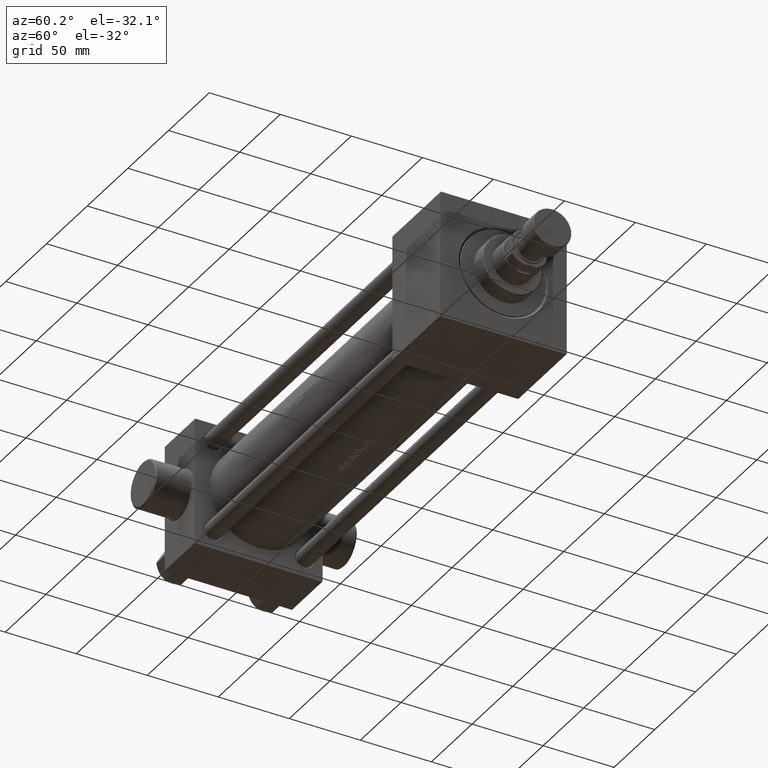
[diagram: clean part render]
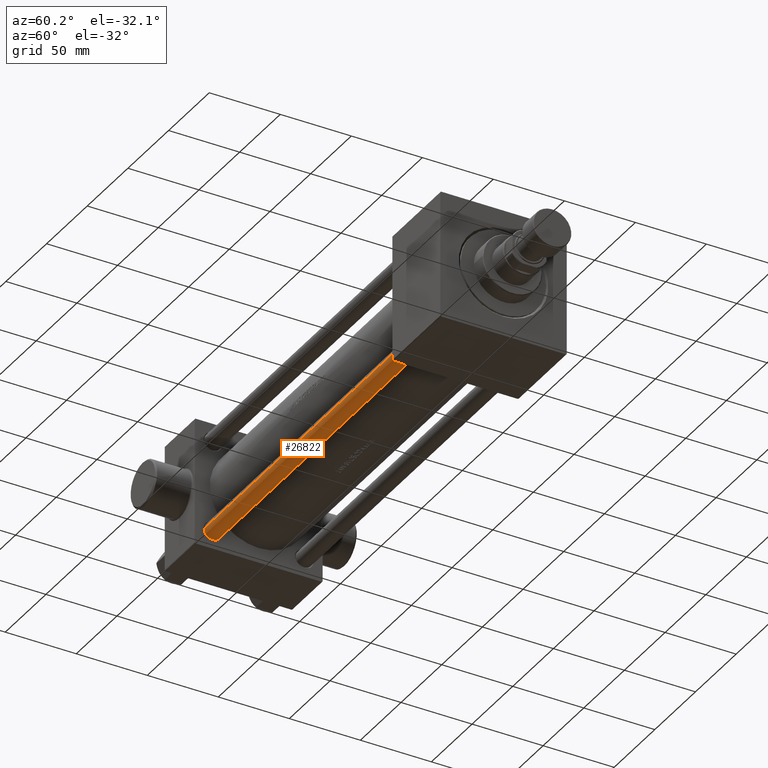
[diagram: same view with one face highlighted and labeled with its STEP entity id]
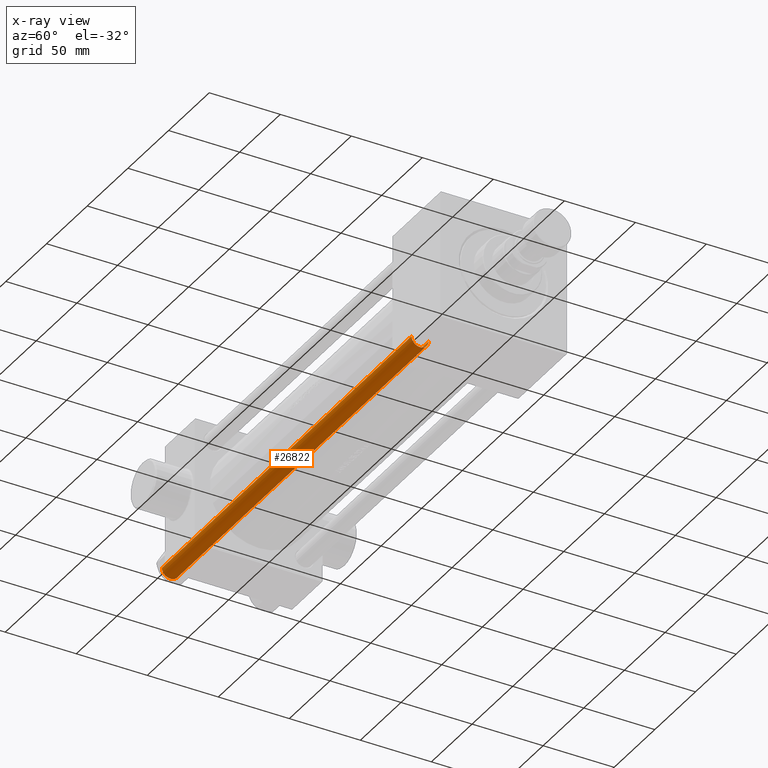
[diagram: x-ray of the same camera — body ghosted, the highlighted face saturated]
A machine part, auxiliary view. The second image highlights one B-rep face of the part: STEP entity #26822.
The next image is the same camera in x-ray: the body ghosted, the highlighted face saturated — about 0% of this face is hidden behind the body in this view.
In plain terms, the highlighted cylindrical surface (edge-blend (fillet) strip) has radius 6 mm, axis along (-1, 0, 0).
Its self-contained STEP definition (entity closure, byte-faithful):
#181 = DIRECTION ( 'NONE',  ( -0.000000000000000000, -0.000000000000000000, -1.000000000000000000 ) ) ;
#1114 = VERTEX_POINT ( 'NONE', #6437 ) ;
#2324 = EDGE_LOOP ( 'NONE', ( #17593, #36899, #31732, #22449 ) ) ;
#2370 = AXIS2_PLACEMENT_3D ( 'NONE', #10578, #181, #3264 ) ;
#3057 = CIRCLE ( 'NONE', #9086, 6.000000000000000888 ) ;
#3264 = DIRECTION ( 'NONE',  ( -1.000000000000000000, 0.000000000000000000, 0.000000000000000000 ) ) ;
#4901 = DIRECTION ( 'NONE',  ( -0.000000000000000000, -0.000000000000000000, -1.000000000000000000 ) ) ;
#6374 = DIRECTION ( 'NONE',  ( -0.000000000000000000, -0.000000000000000000, 1.000000000000000000 ) ) ;
#6437 = CARTESIAN_POINT ( 'NONE',  ( -6.000000000000000888, 0.000000000000000000, 0.5000000000000559552 ) ) ;
#8394 = VECTOR ( 'NONE', #4901, 1000.000000000000000 ) ;
#9086 = AXIS2_PLACEMENT_3D ( 'NONE', #42524, #6374, #31209 ) ;
#9930 = EDGE_CURVE ( 'NONE', #1114, #10419, #3057, .T. ) ;
#10419 = VERTEX_POINT ( 'NONE', #41894 ) ;
#10578 = CARTESIAN_POINT ( 'NONE',  ( 0.000000000000000000, 0.000000000000000000, 308.0000000000000000 ) ) ;
#10953 = LINE ( 'NONE', #21144, #32090 ) ;
#14088 = CARTESIAN_POINT ( 'NONE',  ( 0.000000000000000000, 0.000000000000000000, 307.4999999999999432 ) ) ;
#17593 = ORIENTED_EDGE ( 'NONE', *, *, #20153, .F. ) ;
#19023 = EDGE_CURVE ( 'NONE', #25687, #39234, #23751, .T. ) ;
#20153 = EDGE_CURVE ( 'NONE', #25687, #10419, #10953, .T. ) ;
#21144 = CARTESIAN_POINT ( 'NONE',  ( 6.000000000000000888, 7.347880794884120722E-16, 308.0000000000000000 ) ) ;
#22449 = ORIENTED_EDGE ( 'NONE', *, *, #9930, .T. ) ;
#23751 = CIRCLE ( 'NONE', #44159, 6.000000000000000888 ) ;
#25014 = CARTESIAN_POINT ( 'NONE',  ( -6.000000000000000888, 0.000000000000000000, 308.0000000000000000 ) ) ;
#25687 = VERTEX_POINT ( 'NONE', #38205 ) ;
#26822 = ADVANCED_FACE ( 'NONE', ( #39421 ), #28560, .T. ) ;
#26888 = EDGE_CURVE ( 'NONE', #39234, #1114, #42973, .T. ) ;
#28560 = CYLINDRICAL_SURFACE ( 'NONE', #2370, 6.000000000000000888 ) ;
#28754 = DIRECTION ( 'NONE',  ( 0.000000000000000000, 0.000000000000000000, -1.000000000000000000 ) ) ;
#31209 = DIRECTION ( 'NONE',  ( 1.000000000000000000, 0.000000000000000000, 0.000000000000000000 ) ) ;
#31732 = ORIENTED_EDGE ( 'NONE', *, *, #26888, .T. ) ;
#32090 = VECTOR ( 'NONE', #35326, 1000.000000000000000 ) ;
#32529 = DIRECTION ( 'NONE',  ( 1.000000000000000000, 0.000000000000000000, 0.000000000000000000 ) ) ;
#35326 = DIRECTION ( 'NONE',  ( -0.000000000000000000, -0.000000000000000000, -1.000000000000000000 ) ) ;
#36899 = ORIENTED_EDGE ( 'NONE', *, *, #19023, .T. ) ;
#38205 = CARTESIAN_POINT ( 'NONE',  ( 6.000000000000000888, 7.347880794884120722E-16, 307.4999999999999432 ) ) ;
#39234 = VERTEX_POINT ( 'NONE', #40961 ) ;
#39421 = FACE_OUTER_BOUND ( 'NONE', #2324, .T. ) ;
#40961 = CARTESIAN_POINT ( 'NONE',  ( -6.000000000000000888, 0.000000000000000000, 307.4999999999999432 ) ) ;
#41894 = CARTESIAN_POINT ( 'NONE',  ( 6.000000000000000888, 7.347880794884120722E-16, 0.5000000000000559552 ) ) ;
#42524 = CARTESIAN_POINT ( 'NONE',  ( 0.000000000000000000, 0.000000000000000000, 0.5000000000000559552 ) ) ;
#42973 = LINE ( 'NONE', #25014, #8394 ) ;
#44159 = AXIS2_PLACEMENT_3D ( 'NONE', #14088, #28754, #32529 ) ;